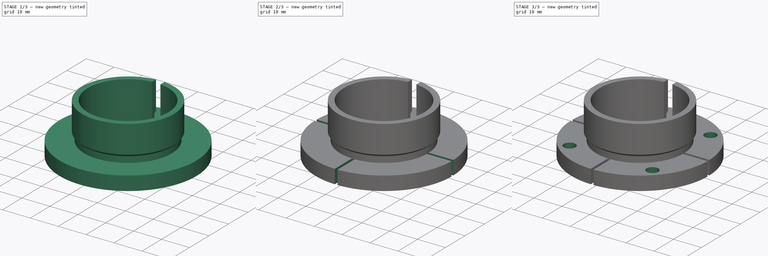
[diagram: build sequence overview — one tinted view per stage of 3, left to right]
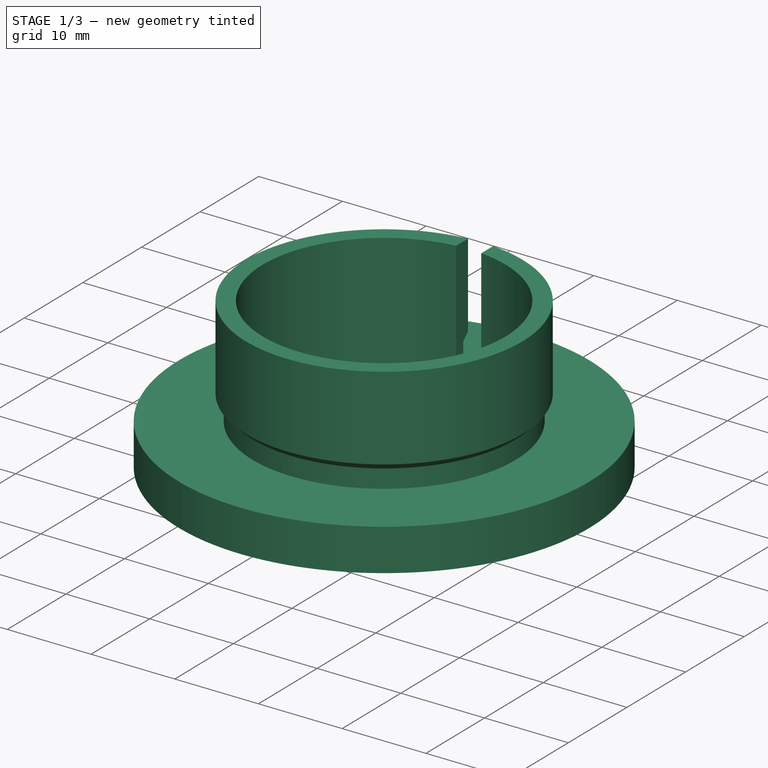
[diagram: stage 1 of 3 — iso view after this stage's code; geometry added in this stage tinted green]
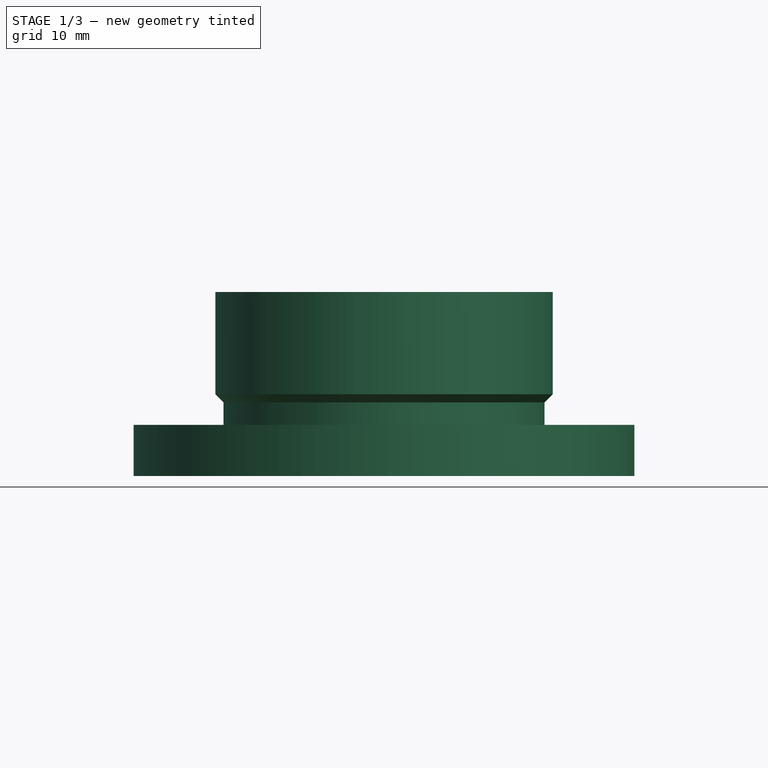
[diagram: stage 1 of 3 — front view after this stage's code; geometry added in this stage tinted green]
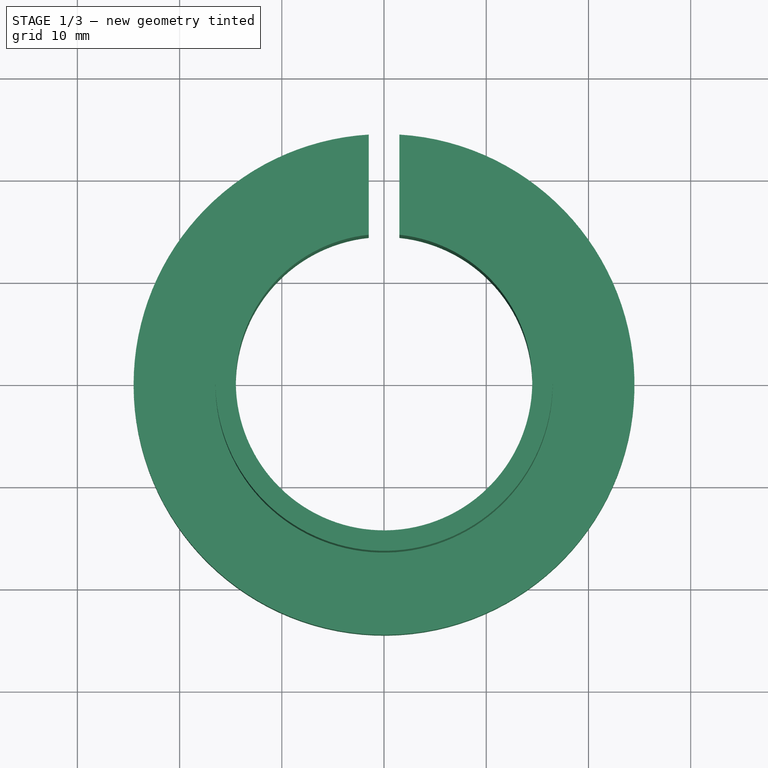
[diagram: stage 1 of 3 — top view after this stage's code; geometry added in this stage tinted green]
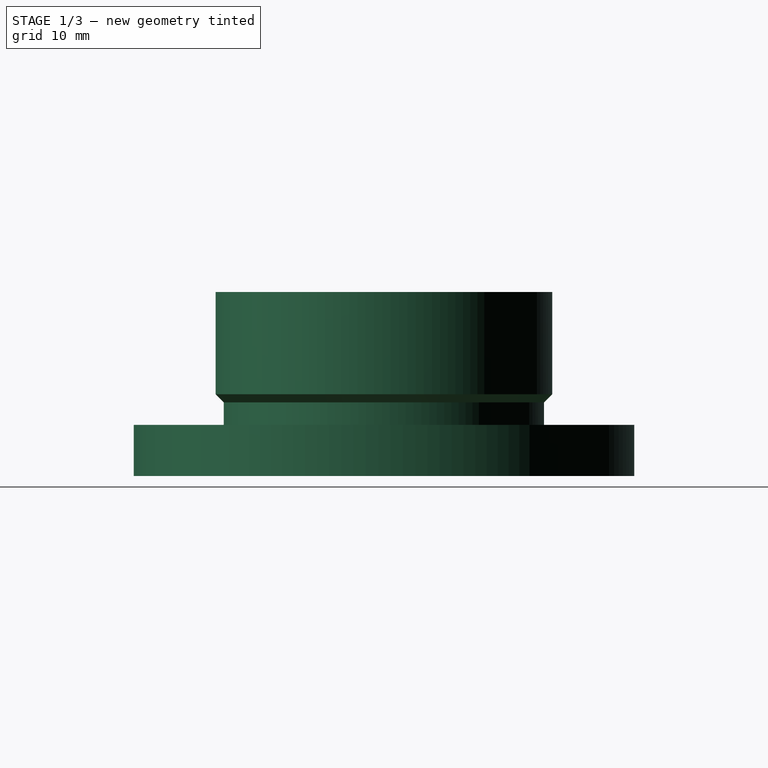
[diagram: stage 1 of 3 — right view after this stage's code; geometry added in this stage tinted green]
FCSTD DOCUMENT  (FreeCAD 1.0R39109 (Git))
Label: ikea_livecam_holder
License: All rights reserved
LicenseURL: https://en.wikipedia.org/wiki/All_rights_reserved
objects: Sketcher::SketchObject×4, PartDesign::Pocket×3, PartDesign::PolarPattern×2, Spreadsheet::Sheet×1, PartDesign::Revolution×1, PartDesign::Body×1
note: 25 computed .brp shape members not serialized (recipe doc carries the construction recipe); baked Part::Feature solids carry a one-line shape summary decoded from their .brp

FEATURE [Spreadsheet::Sheet] Spreadsheet
  cells = A1='Cam diameter; B1(cam_dia)=29; C1='Holder slot width; D1(holder_slot_wid)=3; E1='flange feature count; F1(flange_feature_cnt)=4; A2='Cam height; B2(cam_hei)=18; C2='Flange slot width; D2(flange_slot_wid)=1; A3='Cam hold thickness; B3(cam_hold_thi)=2; C3='flange hole dia; D3(flange_hole_dia)=4.2; A4='cam hold length; B4(cam_hold_len)=10; C4='flange hole dist dia; D4(flange_hole_dist_dia)=42; A5='Cam wall thickness; B5(cam_wall_thi)=1.2; C5='Flange hole angle offset; D5(flange_hole_ang_off)=45; A6='Flange height; B6(flange_hei)=5; A7='Flange thickness; B7(flange_thi)=10; A9='Calculations; A10='Cam radius; B10==cam_dia / 2; A11='Flange slot start dia; B11(flange_slot_start_dia)==cam_dia + cam_wall_thi * 2; A12='flange slot end dia; B12(flange_slot_end_dia)==flange_thi * 2 + cam_dia; A13='Flange hole pos; B13(flange_hole_pos)==flange_hole_dist_dia / 2; D45='vf
FEATURE [Sketcher::SketchObject] Sketch
  ArcFitTolerance = 1e-06
  AttachmentSupport = -> [XZ_Plane]
  FullyConstrained = true
  MakeInternals = false
  MapMode = 5
  Placement = pos=(0,0,0) rot=(1,0,0;1.5708rad)
  expr: Constraints[10] = Spreadsheet.cam_hei
  expr: Constraints[27] = Spreadsheet.cam_hold_thi
  expr: Constraints[28] = Spreadsheet.cam_wall_thi
  expr: Constraints[29] = Spreadsheet.cam_hold_len
  expr: Constraints[30] = Spreadsheet.flange_thi
  expr: Constraints[31] = Spreadsheet.flange_hei
  expr: Constraints[9] = Spreadsheet.cam_dia
  sketch-geometry (12):
    g0: LineSegment [constr] StartX=-14.5 StartY=18 StartZ=0 EndX=-14.5 EndY=0 EndZ=0
    g1: LineSegment [constr] StartX=-14.5 StartY=0 StartZ=0 EndX=14.5 EndY=0 EndZ=0
    g2: LineSegment [constr] StartX=14.5 StartY=0 StartZ=0 EndX=14.5 EndY=18 EndZ=0
    g3: LineSegment [constr] StartX=14.5 StartY=18 StartZ=0 EndX=-14.5 EndY=18 EndZ=0
    g4: LineSegment StartX=-14.5 StartY=0 StartZ=0 EndX=-14.5 EndY=18 EndZ=0
    g5: LineSegment StartX=-14.5 StartY=18 StartZ=0 EndX=-16.5 EndY=18 EndZ=0
    g6: LineSegment StartX=-16.5 StartY=18 StartZ=0 EndX=-16.5 EndY=8 EndZ=0
    g7: LineSegment StartX=-16.5 StartY=8 StartZ=0 EndX=-15.7 EndY=7.2 EndZ=0
    g8: LineSegment StartX=-15.7 StartY=7.2 StartZ=0 EndX=-15.7 EndY=5 EndZ=0
    g9: LineSegment StartX=-15.7 StartY=5 StartZ=0 EndX=-24.5 EndY=5 EndZ=0
    g10: LineSegment StartX=-24.5 StartY=5 StartZ=0 EndX=-24.5 EndY=0 EndZ=0
    g11: LineSegment StartX=-24.5 StartY=0 StartZ=0 EndX=-14.5 EndY=0 EndZ=0
  constraints (33):
    c: Coincident(g0,g1)
    c: Coincident(g1,g2)
    c: Coincident(g2,g3)
    c: Coincident(g3,g0)
    c: Vertical(g0)
    c: Vertical(g2)
    c: Horizontal(g1)
    c: Horizontal(g3)
    c: Symmetric(g0,g1,g-1)
    c: DistanceX(g1,g1) = 29
    c: DistanceY(g1,g2) = 18
    c: Coincident(g0,g4)
    c: Coincident(g4,g0)
    c: Coincident(g4,g5)
    c: Horizontal(g5)
    c: Coincident(g5,g6)
    c: Vertical(g6)
    c: Coincident(g6,g7)
    c: Coincident(g7,g8)
    c: Vertical(g8)
    c: Coincident(g8,g9)
    c: Coincident(g9,g10)
    c: Coincident(g10,g11)
    c: Coincident(g11,g4)
    c: Horizontal(g11)
    c: Vertical(g10)
    c: Horizontal(g9)
    c: DistanceX(g5,g5) = 2
    c: DistanceX(g7,g0) = 1.2
    c: DistanceY(g6,g5) = 10
    c: DistanceX(g10,g0) = 10
    c: DistanceY(g10,g9) = 5
    c: Angle(g7,g6) = 2.35619
FEATURE [PartDesign::Revolution] Revolution  label="main body"
  Angle = 360
  Angle2 = 60
  Axis = (0,2e-16,1)
  Base = (0,0,0)
  Placement = pos=(0,0,0) rot=(1,0,0;1.5708rad)
  Profile = -> Sketch
  ReferenceAxis = -> Sketch [V_Axis]
  Refine = true
  Suppressed = false
  Type = 0
FEATURE [Sketcher::SketchObject] Sketch001
  ArcFitTolerance = 1e-06
  AttachmentOffset = pos=(0,0,18) rot=(0,0,1;0rad)
  AttachmentSupport = -> [XY_Plane]
  FullyConstrained = true
  MakeInternals = false
  MapMode = 5
  Placement = pos=(0,0,18) rot=(0,0,1;0rad)
  expr: .AttachmentOffset.Base.z = Spreadsheet.cam_hei
  expr: Constraints[10] = Spreadsheet.holder_slot_wid
  expr: Constraints[11] = Spreadsheet.flange_thi + 2
  expr: Constraints[2] = Spreadsheet.cam_dia
  sketch-geometry (6):
    g0: GeomPoint [constr] X=0 Y=14.5 Z=0
    g1: GeomPoint [constr] X=0 Y=-14.5 Z=0
    g2: LineSegment StartX=-1.5 StartY=13.5 StartZ=0 EndX=1.5 EndY=13.5 EndZ=0
    g3: LineSegment StartX=1.5 StartY=13.5 StartZ=0 EndX=1.5 EndY=25.5 EndZ=0
    g4: LineSegment StartX=1.5 StartY=25.5 StartZ=0 EndX=-1.5 EndY=25.5 EndZ=0
    g5: LineSegment StartX=-1.5 StartY=25.5 StartZ=0 EndX=-1.5 EndY=13.5 EndZ=0
  constraints (14):
    c: Symmetric(g1,g0,g-1)
    c: PointOnObject(g1,g-2)
    c: DistanceY(g1,g0) = 29
    c: Coincident(g2,g3)
    c: Coincident(g3,g4)
    c: Coincident(g4,g5)
    c: Coincident(g5,g2)
    c: Horizontal(g4)
    c: Vertical(g3)
    c: Vertical(g5)
    c: DistanceX(g2,g2) = 3
    c: DistanceY(g3,g3) = 12
    c: Symmetric(g2,g2,g-2)
    c: DistanceY(g2,g0) = 1
FEATURE [PartDesign::Pocket] Pocket  label="inner slot"
  BaseFeature = -> Revolution
  Direction = (0,0,-1)
  Length = 5
  Length2 = 5
  Placement = pos=(0,0,0) rot=(1,0,0;1.5708rad)
  Profile = -> Sketch001
  ReferenceAxis = -> Sketch001 [N_Axis]
  Refine = true
  Suppressed = false
  Type = 1
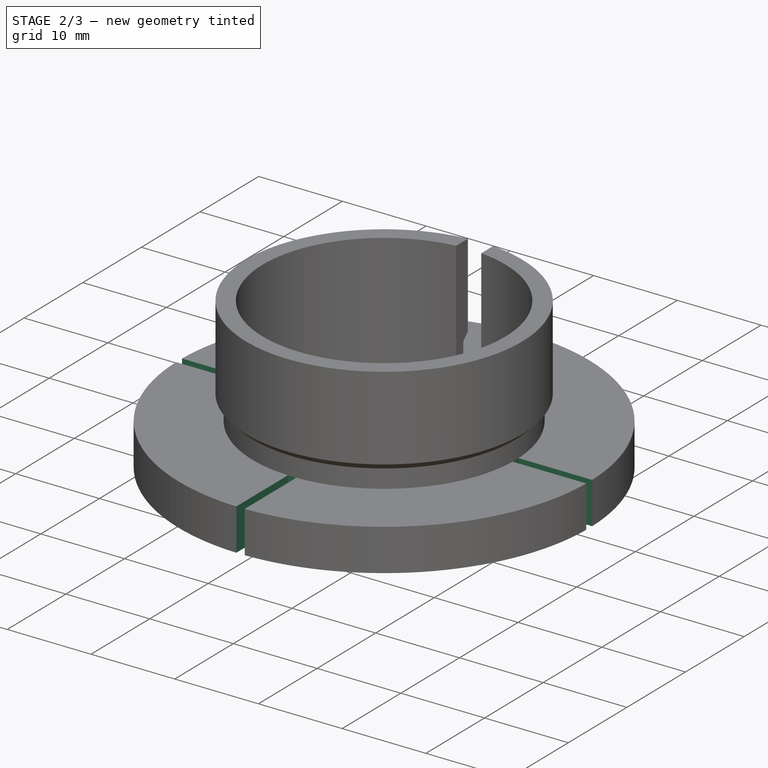
[diagram: stage 2 of 3 — iso view after this stage's code; geometry added in this stage tinted green]
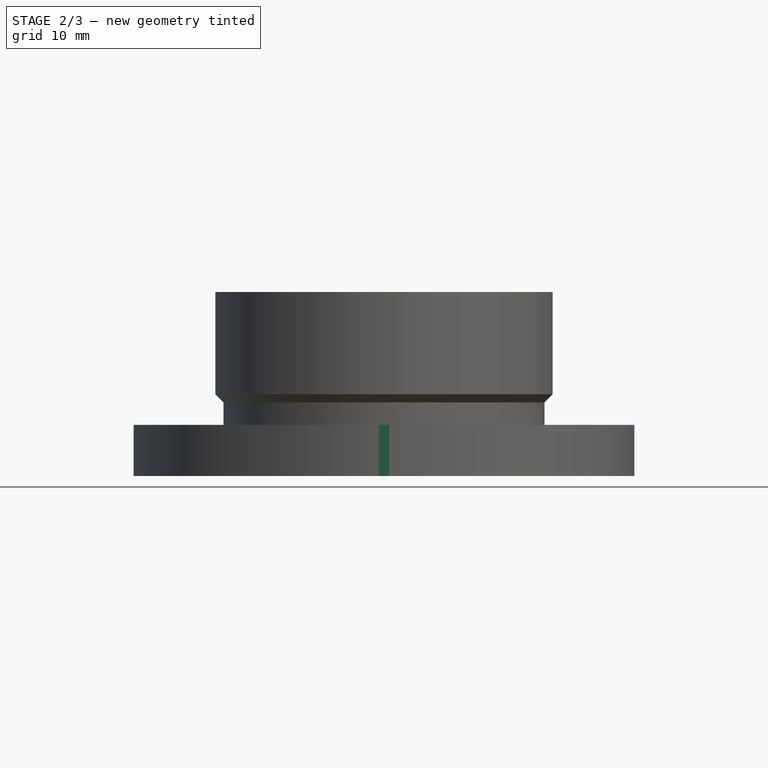
[diagram: stage 2 of 3 — front view after this stage's code; geometry added in this stage tinted green]
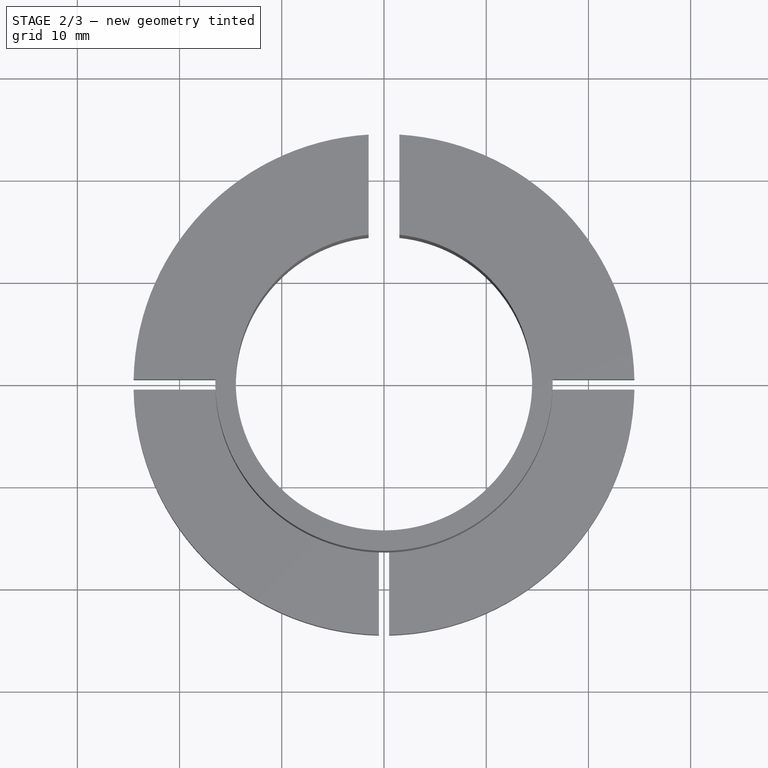
[diagram: stage 2 of 3 — top view after this stage's code; geometry added in this stage tinted green]
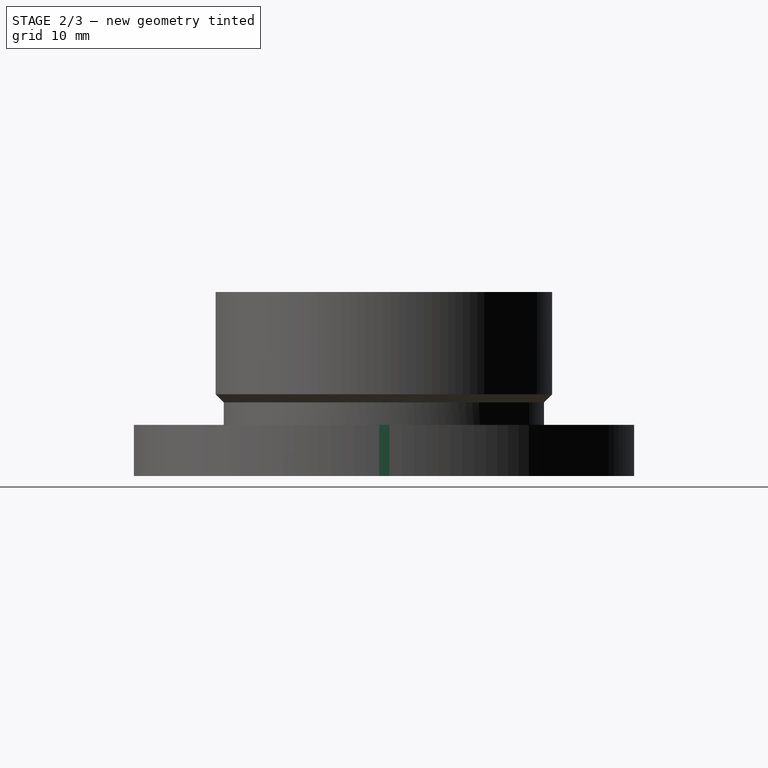
[diagram: stage 2 of 3 — right view after this stage's code; geometry added in this stage tinted green]
FEATURE [Sketcher::SketchObject] Sketch002
  ArcFitTolerance = 1e-06
  AttachmentSupport = -> [XY_Plane]
  FullyConstrained = true
  MakeInternals = false
  MapMode = 5
  expr: Constraints[10] = Spreadsheet.flange_slot_end_dia / 2
  expr: Constraints[8] = Spreadsheet.flange_slot_wid
  expr: Constraints[9] = Spreadsheet.flange_slot_start_dia / 2
  sketch-geometry (4):
    g0: LineSegment StartX=-0.5 StartY=-24.5 StartZ=0 EndX=0.5 EndY=-24.5 EndZ=0
    g1: LineSegment StartX=0.5 StartY=-24.5 StartZ=0 EndX=0.5 EndY=-15.7 EndZ=0
    g2: LineSegment StartX=0.5 StartY=-15.7 StartZ=0 EndX=-0.5 EndY=-15.7 EndZ=0
    g3: LineSegment StartX=-0.5 StartY=-15.7 StartZ=0 EndX=-0.5 EndY=-24.5 EndZ=0
  constraints (11):
    c: Coincident(g0,g1)
    c: Coincident(g1,g2)
    c: Coincident(g2,g3)
    c: Coincident(g3,g0)
    c: Horizontal(g0)
    c: Vertical(g1)
    c: Vertical(g3)
    c: Symmetric(g2,g1,g-2)
    c: DistanceX(g2,g2) = 1
    c: DistanceY(g2,g-1) = 15.7
    c: DistanceY(g0,g-1) = 24.5
FEATURE [PartDesign::Pocket] Pocket001  label="flange slot"
  BaseFeature = -> Pocket
  Direction = (0,0,-1)
  Length = 5
  Length2 = 5
  Placement = pos=(0,0,0) rot=(1,0,0;1.5708rad)
  Profile = -> Sketch002
  ReferenceAxis = -> Sketch002 [N_Axis]
  Refine = true
  Reversed = true
  Suppressed = false
  Type = 0
  expr: Length = Spreadsheet.flange_hei
FEATURE [PartDesign::PolarPattern] PolarPattern  label="flange slots"
  Angle = 360
  Axis = -> Sketch002 [N_Axis]
  BaseFeature = -> Pocket001
  Mode = 0
  Occurrences = 4
  Offset = 120
  Originals = -> [Pocket001]
  Placement = pos=(0,0,0) rot=(1,0,0;1.5708rad)
  Refine = true
  Suppressed = false
  TransformMode = 0
  expr: Occurrences = Spreadsheet.flange_feature_cnt
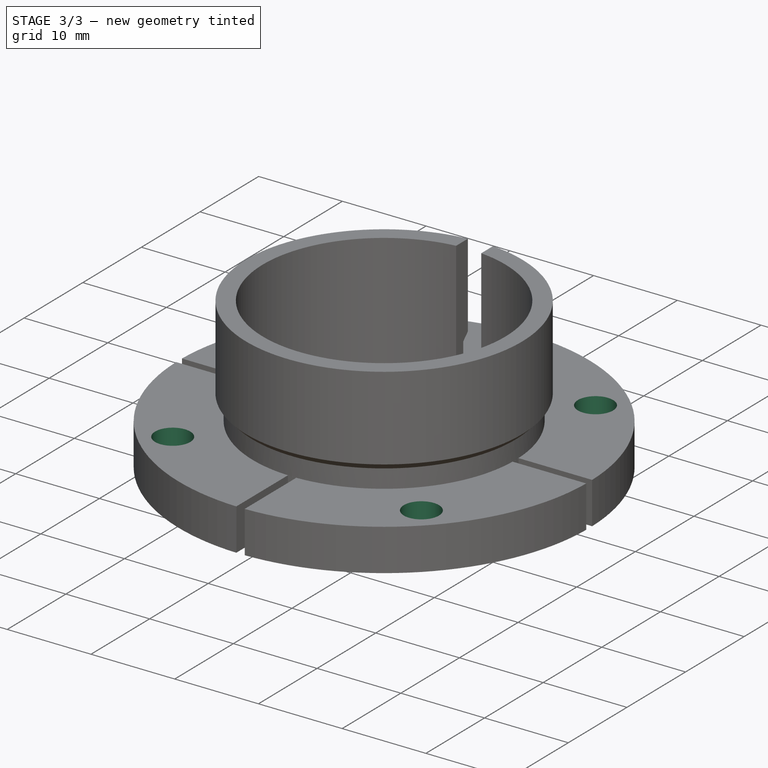
[diagram: stage 3 of 3 — iso view after this stage's code; geometry added in this stage tinted green]
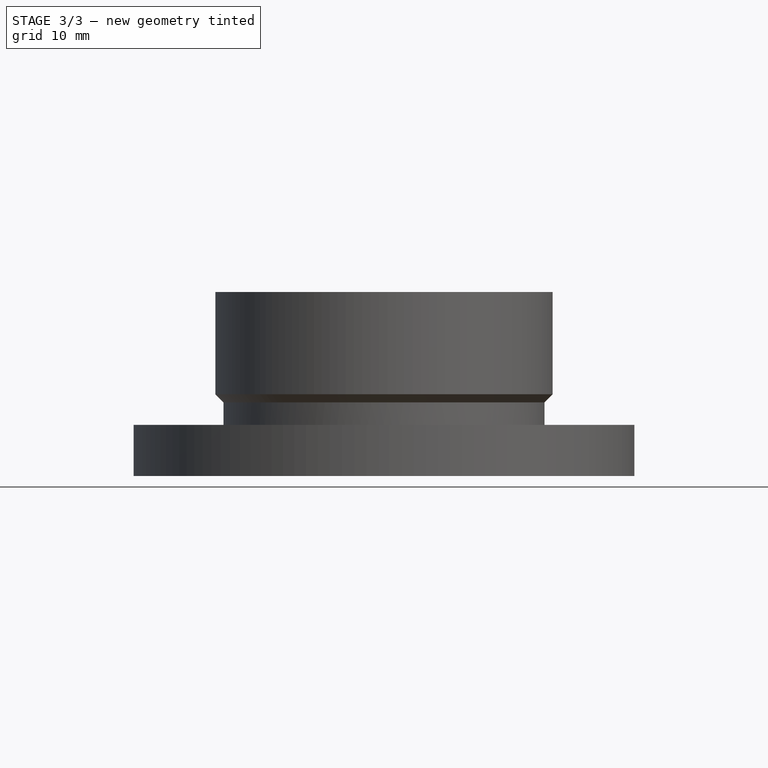
[diagram: stage 3 of 3 — front view after this stage's code; geometry added in this stage tinted green]
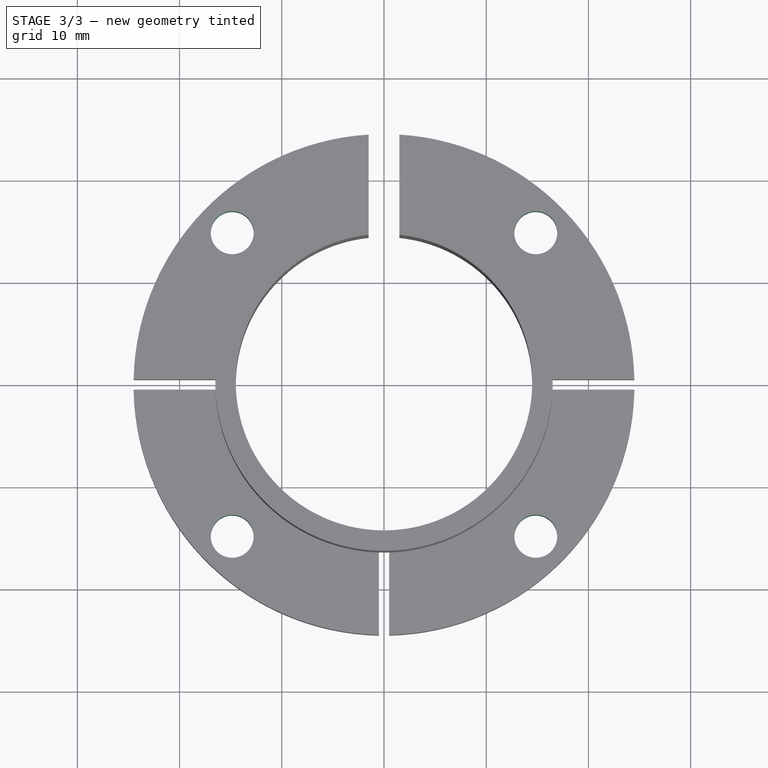
[diagram: stage 3 of 3 — top view after this stage's code; geometry added in this stage tinted green]
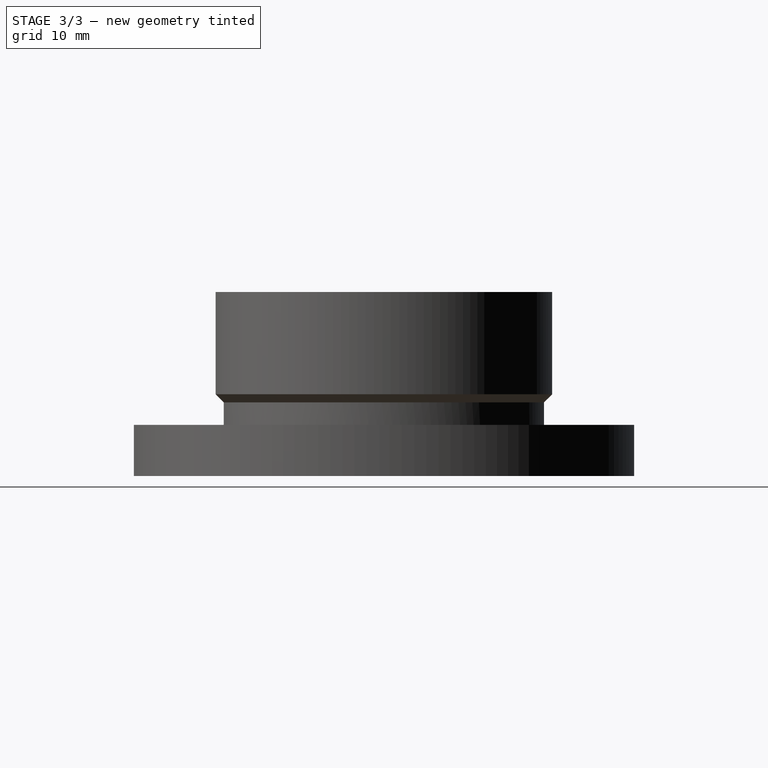
[diagram: stage 3 of 3 — right view after this stage's code; geometry added in this stage tinted green]
FEATURE [Sketcher::SketchObject] Sketch003
  ArcFitTolerance = 1e-06
  AttachmentSupport = -> [XY_Plane]
  FullyConstrained = true
  MakeInternals = false
  MapMode = 5
  expr: Constraints[0] = Spreadsheet.flange_hole_dia
  expr: Constraints[2] = Spreadsheet.flange_hole_dist_dia
  expr: Constraints[6] = Spreadsheet.flange_hole_ang_off
  sketch-geometry (3):
    g0: Circle CenterX=14.8492 CenterY=14.8492 CenterZ=0 NormalX=0 NormalY=0 NormalZ=1 AngleXU=0 Radius=2.1
    g1: Circle [constr] CenterX=0 CenterY=0 CenterZ=0 NormalX=0 NormalY=0 NormalZ=1 AngleXU=0 Radius=21
    g2: LineSegment [constr] StartX=0 StartY=0 StartZ=0 EndX=14.8492 EndY=14.8492 EndZ=0
  constraints (7):
    c: Diameter(g0) = 4.2
    c: Coincident(g1,g-1)
    c: Diameter(g1) = 42
    c: PointOnObject(g0,g1)
    c: Coincident(g2,g1)
    c: Coincident(g2,g0)
    c: Angle(g-1,g2) = 0.785398
FEATURE [PartDesign::Pocket] Pocket002  label="flange_hole"
  BaseFeature = -> PolarPattern
  Direction = (0,0,-1)
  Length = 5
  Length2 = 5
  Placement = pos=(0,0,0) rot=(1,0,0;1.5708rad)
  Profile = -> Sketch003
  ReferenceAxis = -> Sketch003 [N_Axis]
  Refine = true
  Reversed = true
  Suppressed = false
  Type = 0
  expr: Length = Spreadsheet.flange_hei
FEATURE [PartDesign::PolarPattern] PolarPattern001  label="flange holes"
  Angle = 360
  Axis = -> Sketch003 [N_Axis]
  BaseFeature = -> Pocket002
  Mode = 0
  Occurrences = 4
  Offset = 85
  Originals = -> [Pocket002]
  Placement = pos=(0,0,0) rot=(1,0,0;1.5708rad)
  Refine = true
  Suppressed = false
  TransformMode = 0
  expr: Occurrences = Spreadsheet.flange_feature_cnt
FEATURE [PartDesign::Body] Body
  AllowCompound = false
  Group = -> [Sketch,Revolution,Sketch001,Pocket,Sketch002,Pocket001,PolarPattern,Sketch003,Pocket002,PolarPattern001]
  Origin = -> Origin
  Tip = -> PolarPattern001
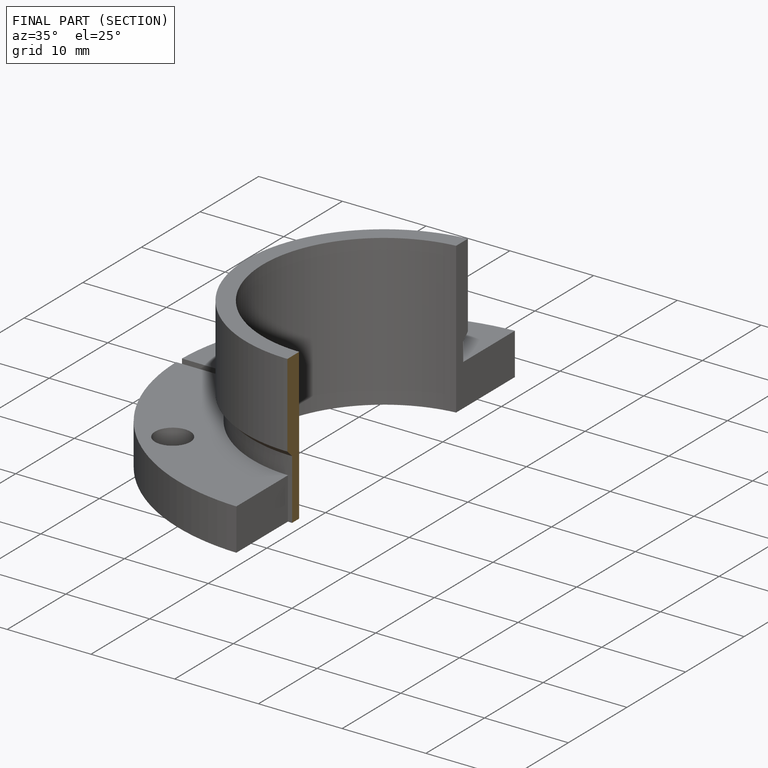
[diagram: finished part — half-section view (interior)]
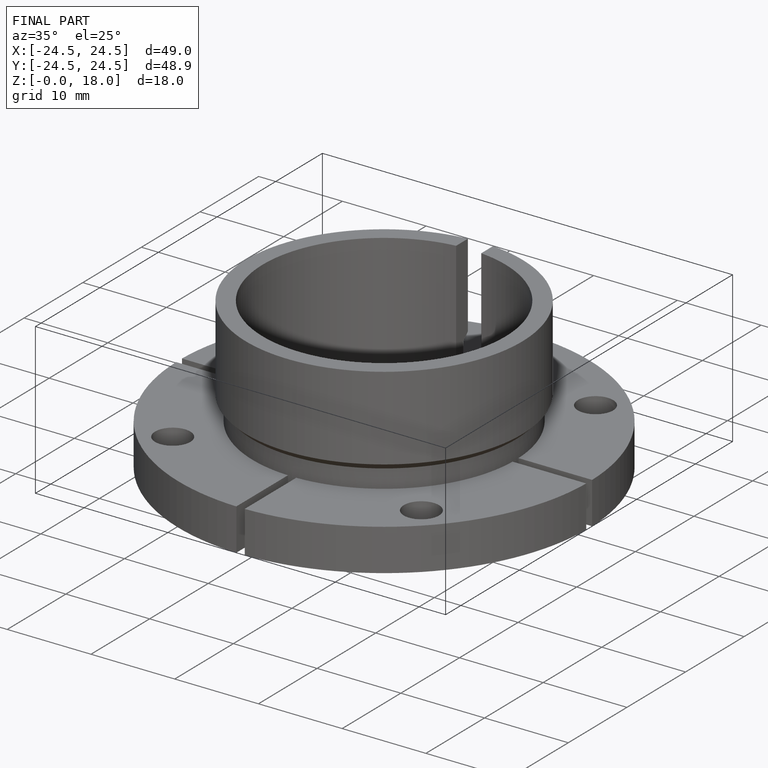
[diagram: finished part — iso view with bounding-box wireframe]
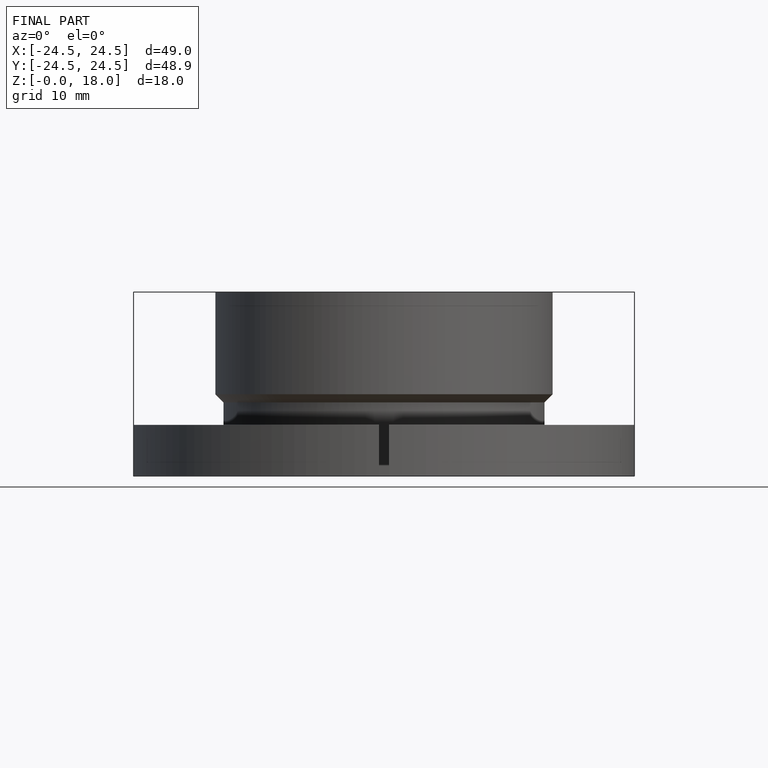
[diagram: finished part — front view with bounding-box wireframe]
